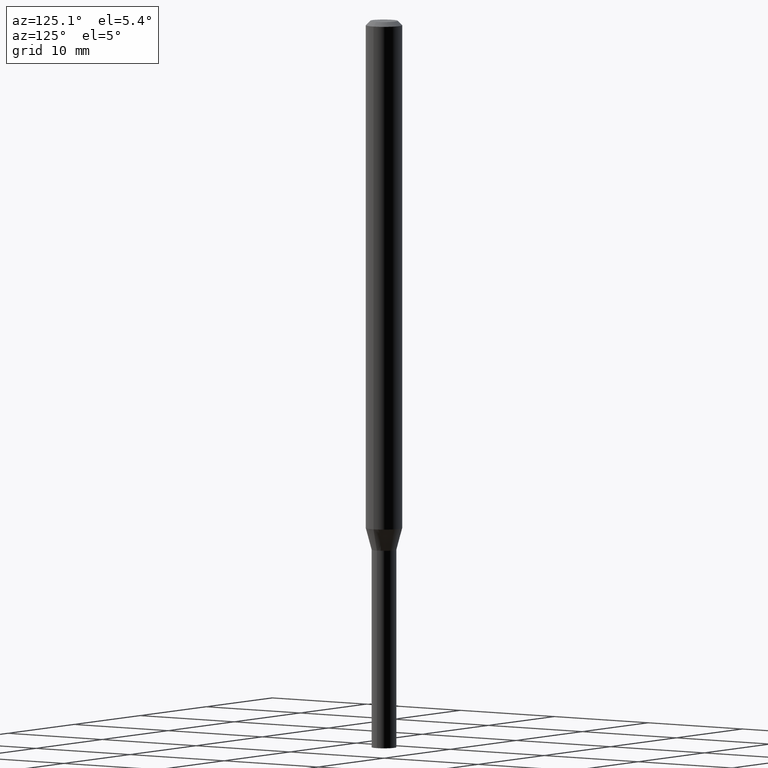
[diagram: clean part render]
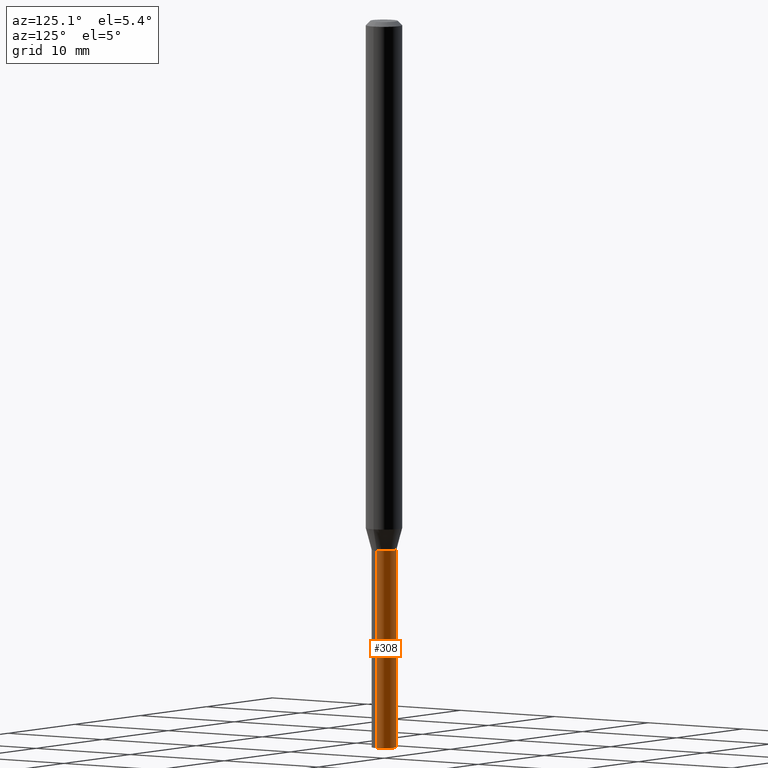
[diagram: same view with one face highlighted and labeled with its STEP entity id]
A machine part, auxiliary view. The second image highlights one B-rep face of the part: STEP entity #308.
In plain terms, the highlighted cylindrical surface (edge-blend (fillet) strip) has radius 1.0795 mm, axis along (-0, 0, 1).
Its self-contained STEP definition (entity closure, byte-faithful):
#24 = CIRCLE ( 'NONE', #351, 0.04249999999999999611 ) ;
#31 = VERTEX_POINT ( 'NONE', #58 ) ;
#36 = VERTEX_POINT ( 'NONE', #163 ) ;
#54 = FACE_OUTER_BOUND ( 'NONE', #221, .T. ) ;
#55 = DIRECTION ( 'NONE',  ( -2.445468806185136597E-29, 3.491481338843145583E-15, 1.000000000000000000 ) ) ;
#56 = VECTOR ( 'NONE', #397, 39.37007874015748143 ) ;
#58 = CARTESIAN_POINT ( 'NONE',  ( -0.04249999999999999611, -7.239619029203152731E-15, -2.500000000000000000 ) ) ;
#94 = CARTESIAN_POINT ( 'NONE',  ( 0.000000000000000000, 0.000000000000000000, 0.000000000000000000 ) ) ;
#97 = CIRCLE ( 'NONE', #373, 0.04249999999999999611 ) ;
#125 = DIRECTION ( 'NONE',  ( 1.000000000000000000, -6.982962677686267499E-15, 4.876176775795935793E-29 ) ) ;
#131 = VERTEX_POINT ( 'NONE', #175 ) ;
#147 = LINE ( 'NONE', #405, #241 ) ;
#163 = CARTESIAN_POINT ( 'NONE',  ( 0.04249999999999999611, -9.025479260909530016E-15, -2.500000000000000000 ) ) ;
#175 = CARTESIAN_POINT ( 'NONE',  ( 0.04249999999999999611, -6.651271950496192865E-15, -1.820000000000000284 ) ) ;
#199 = DIRECTION ( 'NONE',  ( 1.000000000000000000, -6.982962677686276177E-15, 0.000000000000000000 ) ) ;
#216 = ORIENTED_EDGE ( 'NONE', *, *, #293, .F. ) ;
#221 = EDGE_LOOP ( 'NONE', ( #366, #426, #390, #216 ) ) ;
#241 = VECTOR ( 'NONE', #347, 39.37007874015748143 ) ;
#253 = EDGE_CURVE ( 'NONE', #31, #358, #462, .T. ) ;
#293 = EDGE_CURVE ( 'NONE', #36, #131, #147, .T. ) ;
#308 = ADVANCED_FACE ( 'NONE', ( #54 ), #343, .T. ) ;
#343 = CYLINDRICAL_SURFACE ( 'NONE', #428, 0.04249999999999999611 ) ;
#344 = DIRECTION ( 'NONE',  ( -2.445468806185136597E-29, 3.491481338843145583E-15, 1.000000000000000000 ) ) ;
#347 = DIRECTION ( 'NONE',  ( -2.445468806185136877E-29, 3.491481338843145188E-15, 1.000000000000000000 ) ) ;
#351 = AXIS2_PLACEMENT_3D ( 'NONE', #465, #344, #456 ) ;
#355 = CARTESIAN_POINT ( 'NONE',  ( -0.04249999999999999611, 3.019806626980425514E-16, -2.090547413358334859E-30 ) ) ;
#358 = VERTEX_POINT ( 'NONE', #369 ) ;
#366 = ORIENTED_EDGE ( 'NONE', *, *, #396, .T. ) ;
#369 = CARTESIAN_POINT ( 'NONE',  ( -0.04249999999999999611, -7.239619029203152731E-15, -1.820000000000000284 ) ) ;
#373 = AXIS2_PLACEMENT_3D ( 'NONE', #374, #55, #199 ) ;
#374 = CARTESIAN_POINT ( 'NONE',  ( 4.450753227256949301E-29, -6.354496036694526215E-15, -1.820000000000000284 ) ) ;
#378 = DIRECTION ( 'NONE',  ( -2.445468806185136597E-29, 3.491481338843145583E-15, 1.000000000000000000 ) ) ;
#390 = ORIENTED_EDGE ( 'NONE', *, *, #454, .F. ) ;
#396 = EDGE_CURVE ( 'NONE', #36, #31, #24, .T. ) ;
#397 = DIRECTION ( 'NONE',  ( -2.445468806185136877E-29, 3.491481338843145188E-15, 1.000000000000000000 ) ) ;
#405 = CARTESIAN_POINT ( 'NONE',  ( 0.04249999999999999611, -2.967759138016663549E-16, 2.072375129713272502E-30 ) ) ;
#426 = ORIENTED_EDGE ( 'NONE', *, *, #253, .T. ) ;
#428 = AXIS2_PLACEMENT_3D ( 'NONE', #94, #378, #125 ) ;
#454 = EDGE_CURVE ( 'NONE', #131, #358, #97, .T. ) ;
#456 = DIRECTION ( 'NONE',  ( 1.000000000000000000, -6.982962677686254089E-15, 0.000000000000000000 ) ) ;
#462 = LINE ( 'NONE', #355, #56 ) ;
#465 = CARTESIAN_POINT ( 'NONE',  ( 6.113672015462842613E-29, -8.728703347107864943E-15, -2.500000000000000000 ) ) ;